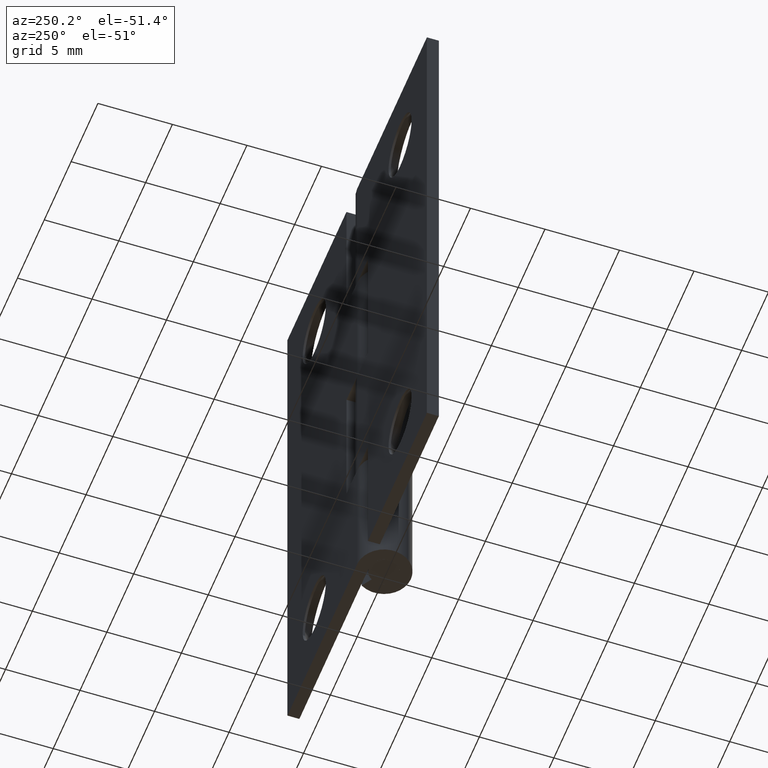
[diagram: clean part render]
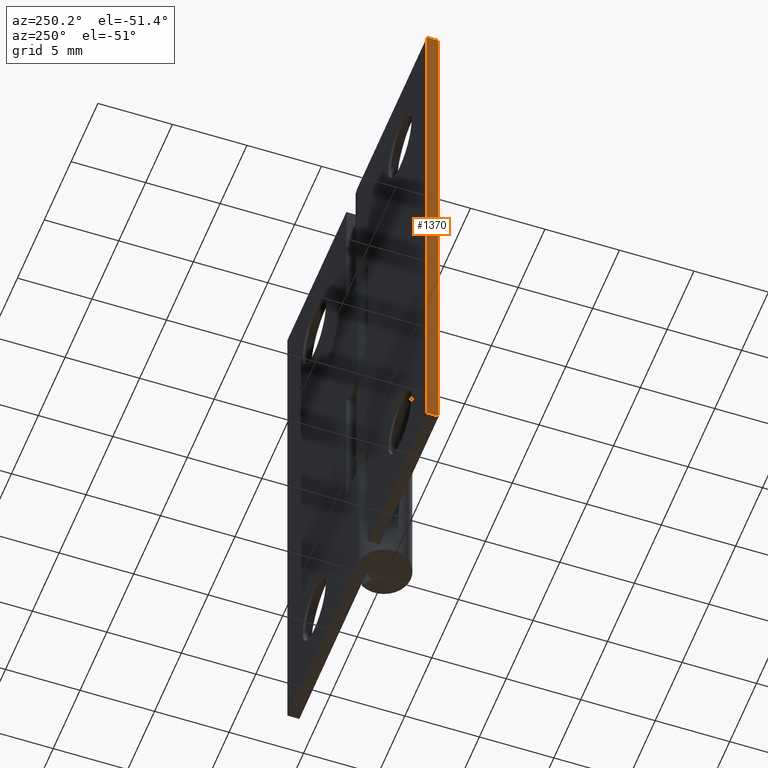
[diagram: same view with one face highlighted and labeled with its STEP entity id]
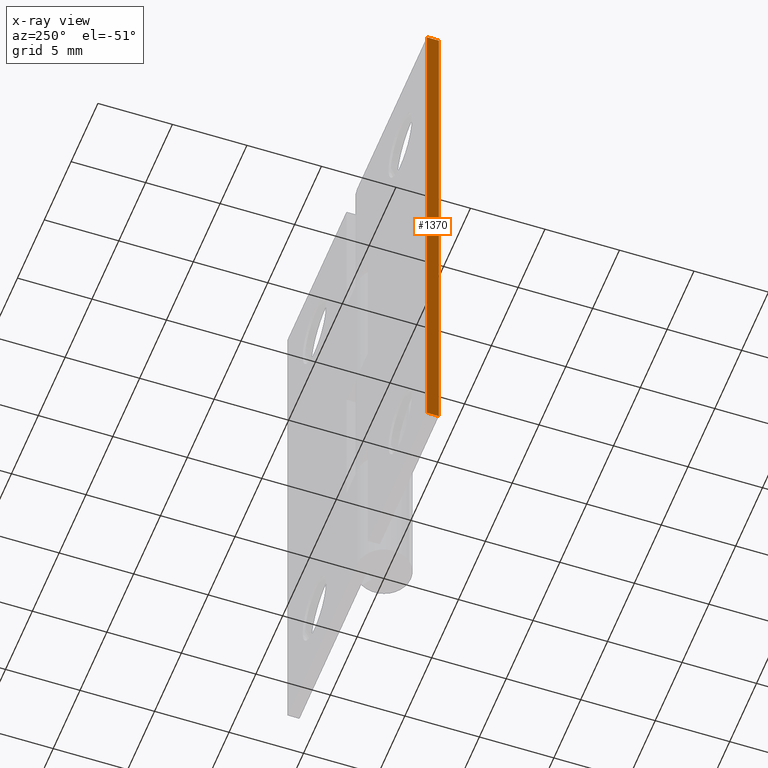
[diagram: x-ray of the same camera — body ghosted, the highlighted face saturated]
A machine part, auxiliary view. The second image highlights one B-rep face of the part: STEP entity #1370.
The next image is the same camera in x-ray: the body ghosted, the highlighted face saturated — about 0% of this face is hidden behind the body in this view.
In plain terms, the highlighted face is a freeform B-spline surface patch.
Its self-contained STEP definition (entity closure, byte-faithful):
#1321=CARTESIAN_POINT('',(-13.0,1.799999000000000,37.999992999999897));
#1322=VERTEX_POINT('',#1321);
#1328=CARTESIAN_POINT('',(-13.0,1.0,37.999992999999897));
#1329=VERTEX_POINT('',#1328);
#1330=CARTESIAN_POINT('',(-13.0,1.0,37.999992999999897));
#1331=CARTESIAN_POINT('',(-13.0,1.799999000000000,37.999992999999897));
#1332=QUASI_UNIFORM_CURVE('',1,(#1330,#1331),.UNSPECIFIED.,.F.,.U.);
#1333=EDGE_CURVE('',#1329,#1322,#1332,.T.);
#1343=CARTESIAN_POINT('',(-13.0,0.960040051500553,-1.898099440935968));
#1344=CARTESIAN_POINT('',(-13.0,0.960040051500553,39.898090742203813));
#1345=CARTESIAN_POINT('',(-13.0,1.839958969957092,-1.898099440935968));
#1346=CARTESIAN_POINT('',(-13.0,1.839958969957092,39.898090742203813));
#1347=B_SPLINE_SURFACE_WITH_KNOTS('',1,1,((#1343,#1345),(#1344,#1346)),.UNSPECIFIED.,.F.,.F.,.U.,(2,2),(2,2),(0.0,41.796190183139778),(0.041708334948495,0.958291687403247),.UNSPECIFIED.);
#1348=CARTESIAN_POINT('',(-13.0,1.0,0.0));
#1349=VERTEX_POINT('',#1348);
#1350=CARTESIAN_POINT('',(-13.0,1.799999000000000,0.0));
#1351=VERTEX_POINT('',#1350);
#1352=CARTESIAN_POINT('',(-13.0,1.0,0.0));
#1353=CARTESIAN_POINT('',(-13.0,1.799999000000000,0.0));
#1354=QUASI_UNIFORM_CURVE('',1,(#1352,#1353),.UNSPECIFIED.,.F.,.U.);
#1355=EDGE_CURVE('',#1349,#1351,#1354,.T.);
#1356=ORIENTED_EDGE('',*,*,#1355,.F.);
#1357=CARTESIAN_POINT('',(-13.0,1.0,37.999992999999897));
#1358=CARTESIAN_POINT('',(-13.0,1.0,0.0));
#1359=QUASI_UNIFORM_CURVE('',1,(#1357,#1358),.UNSPECIFIED.,.F.,.U.);
#1360=EDGE_CURVE('',#1329,#1349,#1359,.T.);
#1361=ORIENTED_EDGE('',*,*,#1360,.F.);
#1362=ORIENTED_EDGE('',*,*,#1333,.T.);
#1363=CARTESIAN_POINT('',(-13.0,1.799999000000000,37.999992999999897));
#1364=CARTESIAN_POINT('',(-13.0,1.799999000000000,0.0));
#1365=QUASI_UNIFORM_CURVE('',1,(#1363,#1364),.UNSPECIFIED.,.F.,.U.);
#1366=EDGE_CURVE('',#1322,#1351,#1365,.T.);
#1367=ORIENTED_EDGE('',*,*,#1366,.T.);
#1368=EDGE_LOOP('',(#1356,#1361,#1362,#1367));
#1369=FACE_OUTER_BOUND('',#1368,.T.);
#1370=ADVANCED_FACE('',(#1369),#1347,.T.);